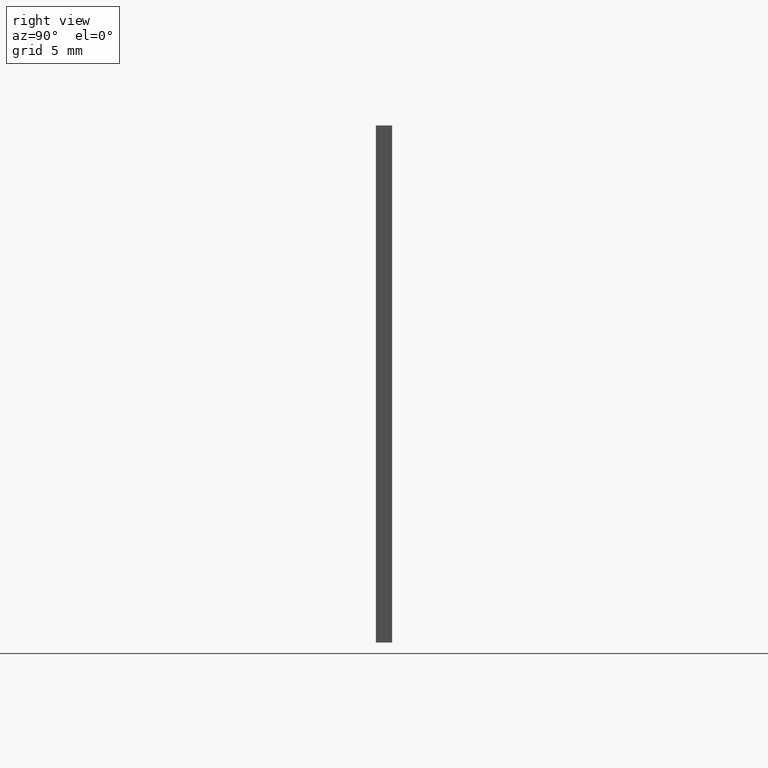
[diagram: clean part render]
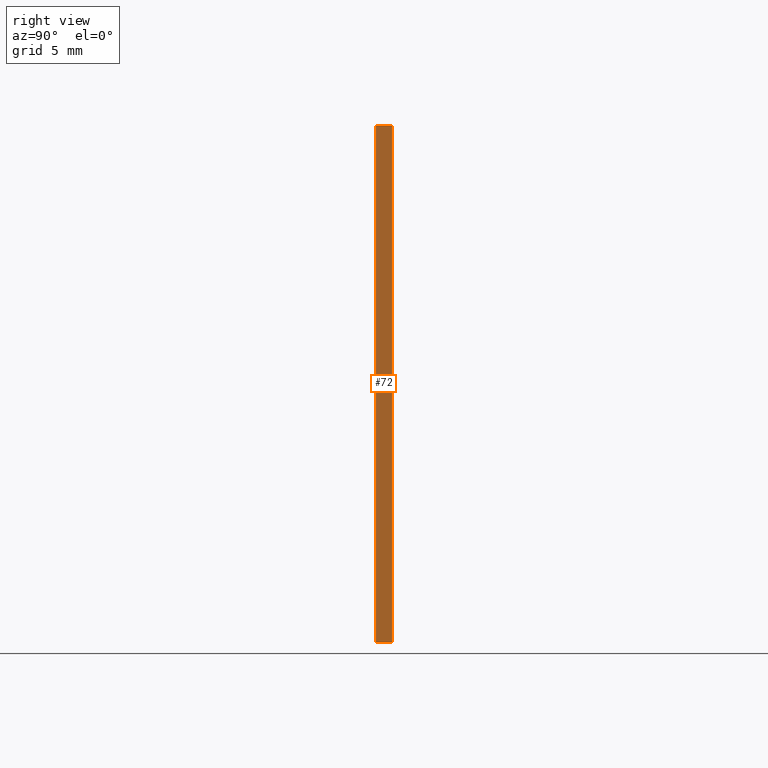
[diagram: same view with one face highlighted and labeled with its STEP entity id]
A machine part, right view. The second image highlights one B-rep face of the part: STEP entity #72.
In plain terms, the highlighted planar face has unit normal (-1, 0, 0).
Its self-contained STEP definition (entity closure, byte-faithful):
#4 = CARTESIAN_POINT ( 'NONE',  ( 17.50000000000000000, 1.100000000000000100, 17.50000000000000000 ) ) ;
#6 = VERTEX_POINT ( 'NONE', #17 ) ;
#8 = EDGE_CURVE ( 'NONE', #6, #66, #118, .T. ) ;
#9 = EDGE_CURVE ( 'NONE', #6, #46, #202, .T. ) ;
#12 = VECTOR ( 'NONE', #74, 1000.000000000000000 ) ;
#17 = CARTESIAN_POINT ( 'NONE',  ( 17.50000000000000000, 1.100000000000000100, 17.50000000000000000 ) ) ;
#24 = CARTESIAN_POINT ( 'NONE',  ( 17.50000000000000000, 0.0000000000000000000, -17.50000000000000000 ) ) ;
#30 = VECTOR ( 'NONE', #71, 1000.000000000000000 ) ;
#46 = VERTEX_POINT ( 'NONE', #175 ) ;
#50 = DIRECTION ( 'NONE',  ( -0.0000000000000000000, -1.000000000000000000, -0.0000000000000000000 ) ) ;
#51 = CARTESIAN_POINT ( 'NONE',  ( 17.50000000000000000, 1.100000000000000100, -17.50000000000000000 ) ) ;
#66 = VERTEX_POINT ( 'NONE', #144 ) ;
#68 = EDGE_LOOP ( 'NONE', ( #145, #169, #146, #183 ) ) ;
#71 = DIRECTION ( 'NONE',  ( -0.0000000000000000000, -0.0000000000000000000, -1.000000000000000000 ) ) ;
#72 = ADVANCED_FACE ( 'NONE', ( #121 ), #140, .F. ) ;
#74 = DIRECTION ( 'NONE',  ( -0.0000000000000000000, -1.000000000000000000, -0.0000000000000000000 ) ) ;
#78 = VERTEX_POINT ( 'NONE', #24 ) ;
#85 = EDGE_CURVE ( 'NONE', #66, #78, #110, .T. ) ;
#110 = LINE ( 'NONE', #142, #12 ) ;
#118 = LINE ( 'NONE', #51, #30 ) ;
#121 = FACE_OUTER_BOUND ( 'NONE', #68, .T. ) ;
#126 = DIRECTION ( 'NONE',  ( 0.0000000000000000000, 0.0000000000000000000, 1.000000000000000000 ) ) ;
#129 = VECTOR ( 'NONE', #50, 1000.000000000000000 ) ;
#137 = DIRECTION ( 'NONE',  ( -0.0000000000000000000, -0.0000000000000000000, -1.000000000000000000 ) ) ;
#140 = PLANE ( 'NONE',  #147 ) ;
#142 = CARTESIAN_POINT ( 'NONE',  ( 17.50000000000000000, 1.100000000000000100, -17.50000000000000000 ) ) ;
#144 = CARTESIAN_POINT ( 'NONE',  ( 17.50000000000000000, 1.100000000000000100, -17.50000000000000000 ) ) ;
#145 = ORIENTED_EDGE ( 'NONE', *, *, #185, .T. ) ;
#146 = ORIENTED_EDGE ( 'NONE', *, *, #8, .F. ) ;
#147 = AXIS2_PLACEMENT_3D ( 'NONE', #172, #152, #126 ) ;
#150 = CARTESIAN_POINT ( 'NONE',  ( 17.50000000000000000, 0.0000000000000000000, -17.50000000000000000 ) ) ;
#152 = DIRECTION ( 'NONE',  ( -1.000000000000000000, 0.0000000000000000000, 0.0000000000000000000 ) ) ;
#169 = ORIENTED_EDGE ( 'NONE', *, *, #85, .F. ) ;
#172 = CARTESIAN_POINT ( 'NONE',  ( 17.50000000000000000, 1.100000000000000100, -17.50000000000000000 ) ) ;
#175 = CARTESIAN_POINT ( 'NONE',  ( 17.50000000000000000, 0.0000000000000000000, 17.50000000000000000 ) ) ;
#179 = VECTOR ( 'NONE', #137, 1000.000000000000000 ) ;
#183 = ORIENTED_EDGE ( 'NONE', *, *, #9, .T. ) ;
#185 = EDGE_CURVE ( 'NONE', #46, #78, #198, .T. ) ;
#198 = LINE ( 'NONE', #150, #179 ) ;
#202 = LINE ( 'NONE', #4, #129 ) ;